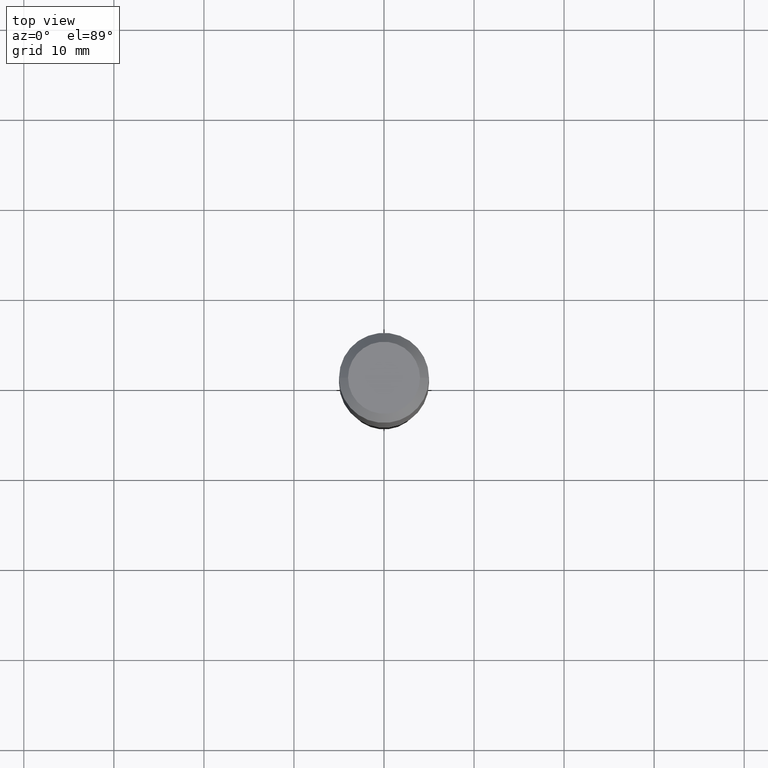
[diagram: clean part render]
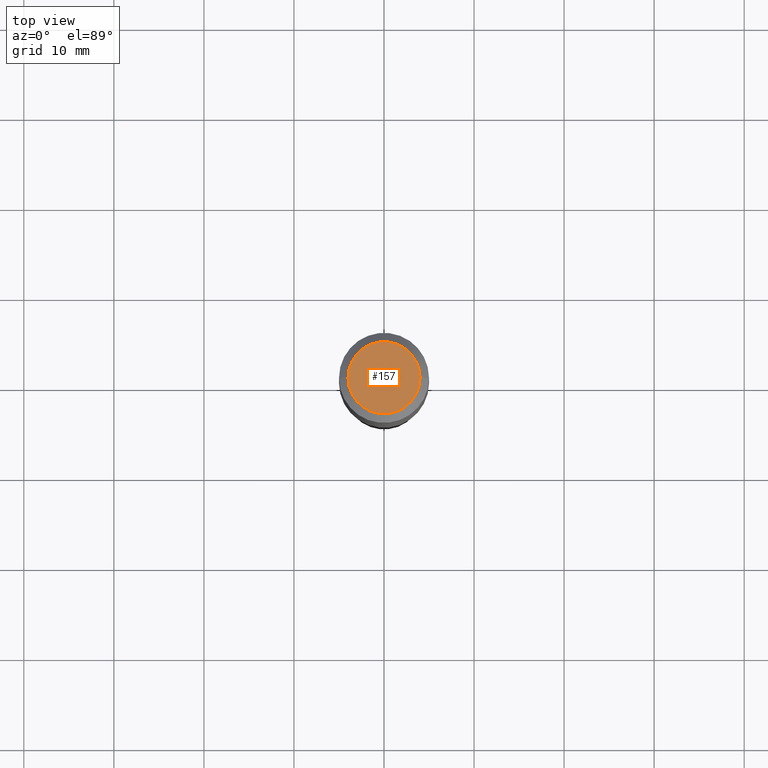
[diagram: same view with one face highlighted and labeled with its STEP entity id]
A machine part, top view. The second image highlights one B-rep face of the part: STEP entity #157.
In plain terms, the highlighted planar face has unit normal (0, -0, -1).
Its self-contained STEP definition (entity closure, byte-faithful):
#54 = DIRECTION ( 'NONE',  ( 2.438088387897960049E-29, -3.491481338843145188E-15, -1.000000000000000000 ) ) ;
#58 = DIRECTION ( 'NONE',  ( -2.445468806185136597E-29, 3.491481338843145583E-15, 1.000000000000000000 ) ) ;
#120 = AXIS2_PLACEMENT_3D ( 'NONE', #252, #175, #136 ) ;
#136 = DIRECTION ( 'NONE',  ( 1.000000000000000000, -6.982962677686265922E-15, 4.876223630392693006E-29 ) ) ;
#140 = EDGE_CURVE ( 'NONE', #391, #168, #463, .T. ) ;
#157 = ADVANCED_FACE ( 'NONE', ( #446 ), #494, .F. ) ;
#168 = VERTEX_POINT ( 'NONE', #210 ) ;
#173 = CARTESIAN_POINT ( 'NONE',  ( -9.427742298522567634E-47, 1.346031739168368355E-32, 3.855188123715870730E-18 ) ) ;
#175 = DIRECTION ( 'NONE',  ( -2.445468806185136597E-29, 3.491481338843145583E-15, 1.000000000000000000 ) ) ;
#194 = EDGE_CURVE ( 'NONE', #168, #391, #464, .T. ) ;
#210 = CARTESIAN_POINT ( 'NONE',  ( -0.1574800000000000089, 1.168406772637159815E-15, 3.855188123707939751E-18 ) ) ;
#218 = DIRECTION ( 'NONE',  ( -1.000000000000000000, 6.982962677686265922E-15, -4.876176775795935793E-29 ) ) ;
#219 = AXIS2_PLACEMENT_3D ( 'NONE', #376, #54, #218 ) ;
#240 = ORIENTED_EDGE ( 'NONE', *, *, #194, .T. ) ;
#252 = CARTESIAN_POINT ( 'NONE',  ( -9.427742298522567634E-47, 1.346031739168368355E-32, 3.855188123715870730E-18 ) ) ;
#263 = EDGE_LOOP ( 'NONE', ( #240, #265 ) ) ;
#265 = ORIENTED_EDGE ( 'NONE', *, *, #140, .T. ) ;
#278 = AXIS2_PLACEMENT_3D ( 'NONE', #173, #58, #488 ) ;
#376 = CARTESIAN_POINT ( 'NONE',  ( -4.713871149261283817E-47, 6.730158695841841775E-33, 1.927594061857935365E-18 ) ) ;
#391 = VERTEX_POINT ( 'NONE', #499 ) ;
#446 = FACE_OUTER_BOUND ( 'NONE', #263, .T. ) ;
#463 = CIRCLE ( 'NONE', #278, 0.1574800000000000089 ) ;
#464 = CIRCLE ( 'NONE', #120, 0.1574800000000000089 ) ;
#488 = DIRECTION ( 'NONE',  ( 1.000000000000000000, -6.982962677686265922E-15, 4.876223630392693006E-29 ) ) ;
#494 = PLANE ( 'NONE',  #219 ) ;
#499 = CARTESIAN_POINT ( 'NONE',  ( 0.1574800000000000089, -1.284169937930321386E-15, 3.855188123724205385E-18 ) ) ;